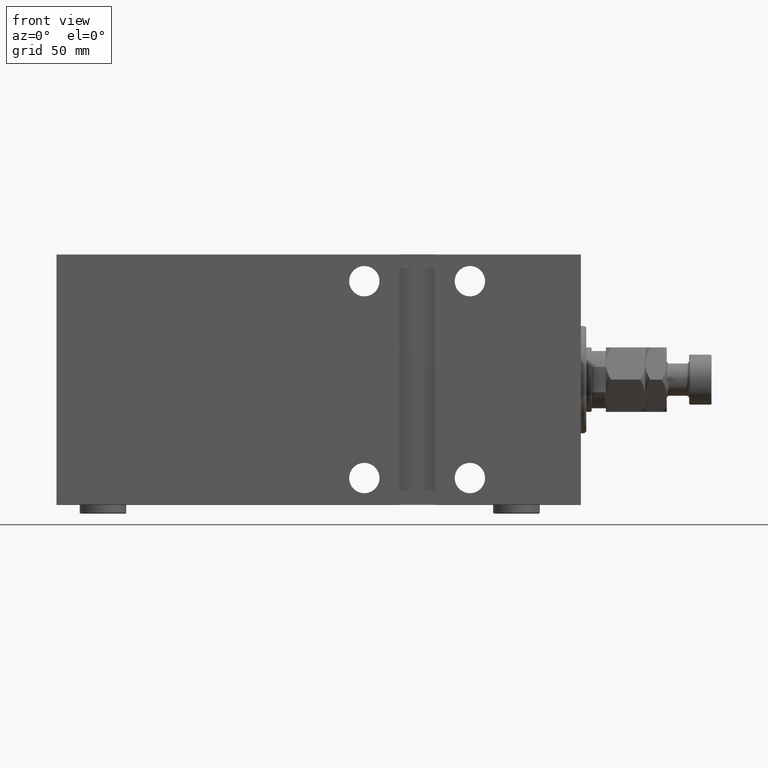
[diagram: clean part render]
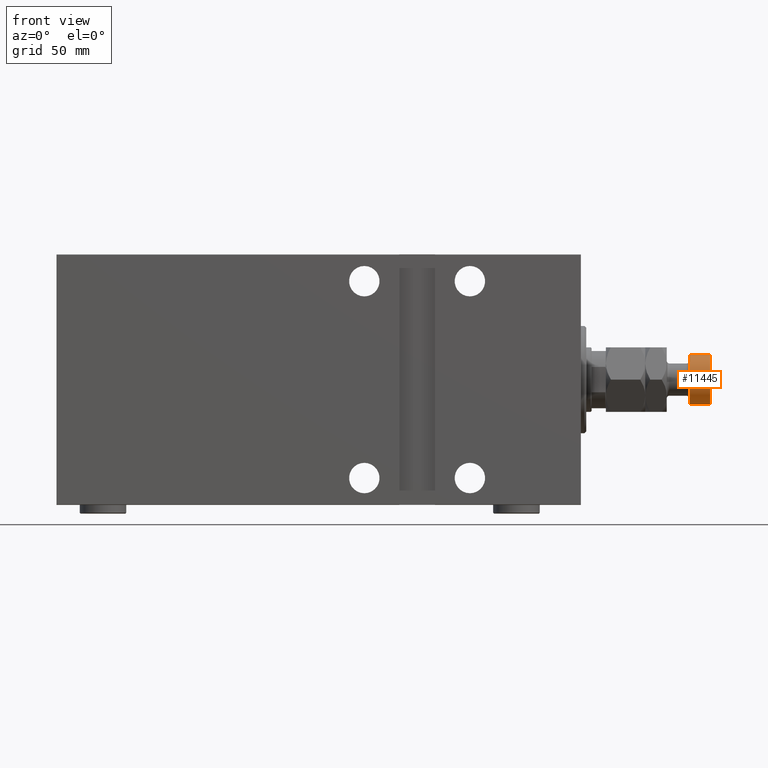
[diagram: same view with one face highlighted and labeled with its STEP entity id]
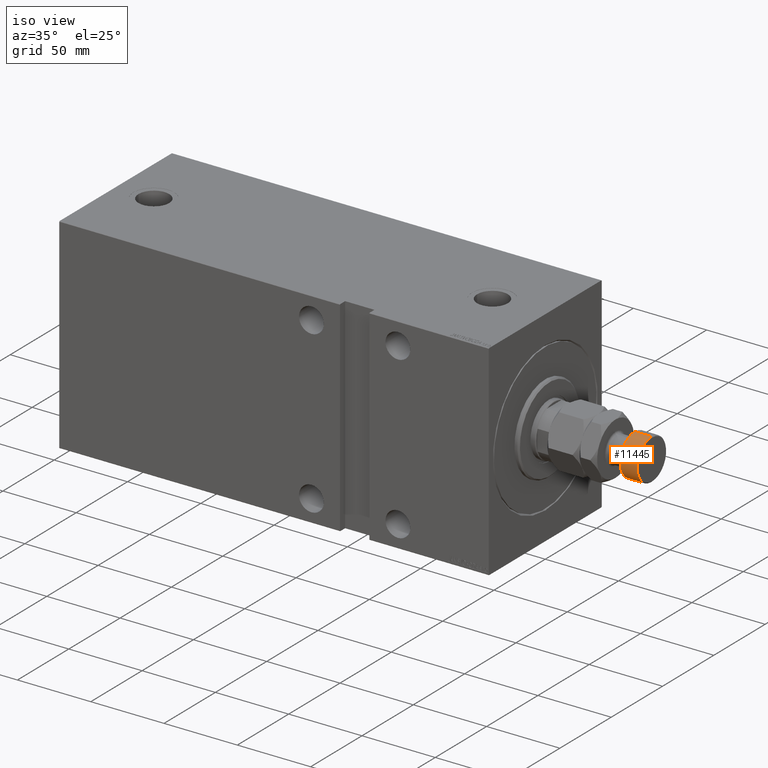
[diagram: same view with one face highlighted and labeled with its STEP entity id]
A machine part, front view. The second image highlights one B-rep face of the part: STEP entity #11445.
A second angle (iso view) of the same face is appended — the face is thin or edge-on in the first view.
In plain terms, the highlighted cylindrical surface (edge-blend (fillet) strip) has radius 14 mm, axis along (-1, -0, 0).
Its self-contained STEP definition (entity closure, byte-faithful):
#164 = VECTOR ( 'NONE', #36305, 1000.000000000000000 ) ;
#1530 = EDGE_CURVE ( 'NONE', #43384, #9385, #23879, .T. ) ;
#3804 = AXIS2_PLACEMENT_3D ( 'NONE', #19039, #22536, #33720 ) ;
#3909 = EDGE_CURVE ( 'NONE', #43384, #8108, #15646, .T. ) ;
#4518 = EDGE_CURVE ( 'NONE', #9385, #23738, #22305, .T. ) ;
#4965 = CARTESIAN_POINT ( 'NONE',  ( 14.00000000000000000, 1.714505518806294638E-15, 59.00000000000000000 ) ) ;
#5224 = ORIENTED_EDGE ( 'NONE', *, *, #24052, .T. ) ;
#8108 = VERTEX_POINT ( 'NONE', #16882 ) ;
#9385 = VERTEX_POINT ( 'NONE', #38513 ) ;
#11445 = ADVANCED_FACE ( 'NONE', ( #19667 ), #41096, .T. ) ;
#11645 = CIRCLE ( 'NONE', #33999, 14.00000000000000000 ) ;
#13572 = CARTESIAN_POINT ( 'NONE',  ( -14.00000000000000000, 0.000000000000000000, 46.99999999999998579 ) ) ;
#15121 = AXIS2_PLACEMENT_3D ( 'NONE', #30387, #40861, #23844 ) ;
#15517 = DIRECTION ( 'NONE',  ( -0.000000000000000000, -0.000000000000000000, 1.000000000000000000 ) ) ;
#15646 = LINE ( 'NONE', #4965, #23956 ) ;
#16081 = ORIENTED_EDGE ( 'NONE', *, *, #4518, .T. ) ;
#16882 = CARTESIAN_POINT ( 'NONE',  ( 14.00000000000000000, 1.714505518806294638E-15, 46.99999999999998579 ) ) ;
#19039 = CARTESIAN_POINT ( 'NONE',  ( 0.000000000000000000, 0.000000000000000000, 58.50000000000002132 ) ) ;
#19182 = ORIENTED_EDGE ( 'NONE', *, *, #3909, .F. ) ;
#19667 = FACE_OUTER_BOUND ( 'NONE', #38637, .T. ) ;
#22305 = LINE ( 'NONE', #36532, #164 ) ;
#22536 = DIRECTION ( 'NONE',  ( 0.000000000000000000, 0.000000000000000000, -1.000000000000000000 ) ) ;
#22975 = CARTESIAN_POINT ( 'NONE',  ( 0.000000000000000000, 0.000000000000000000, 46.99999999999998579 ) ) ;
#23738 = VERTEX_POINT ( 'NONE', #13572 ) ;
#23844 = DIRECTION ( 'NONE',  ( -1.000000000000000000, 0.000000000000000000, 0.000000000000000000 ) ) ;
#23879 = CIRCLE ( 'NONE', #3804, 14.00000000000000000 ) ;
#23956 = VECTOR ( 'NONE', #40128, 1000.000000000000000 ) ;
#24052 = EDGE_CURVE ( 'NONE', #23738, #8108, #11645, .T. ) ;
#29173 = CARTESIAN_POINT ( 'NONE',  ( 14.00000000000000000, 1.714505518806294638E-15, 58.50000000000002132 ) ) ;
#29744 = DIRECTION ( 'NONE',  ( 1.000000000000000000, 0.000000000000000000, 0.000000000000000000 ) ) ;
#30239 = ORIENTED_EDGE ( 'NONE', *, *, #1530, .T. ) ;
#30387 = CARTESIAN_POINT ( 'NONE',  ( 0.000000000000000000, 0.000000000000000000, 59.00000000000000000 ) ) ;
#33720 = DIRECTION ( 'NONE',  ( 1.000000000000000000, 0.000000000000000000, 0.000000000000000000 ) ) ;
#33999 = AXIS2_PLACEMENT_3D ( 'NONE', #22975, #15517, #29744 ) ;
#36305 = DIRECTION ( 'NONE',  ( -0.000000000000000000, -0.000000000000000000, -1.000000000000000000 ) ) ;
#36532 = CARTESIAN_POINT ( 'NONE',  ( -14.00000000000000000, 0.000000000000000000, 59.00000000000000000 ) ) ;
#38513 = CARTESIAN_POINT ( 'NONE',  ( -14.00000000000000000, 0.000000000000000000, 58.50000000000002132 ) ) ;
#38637 = EDGE_LOOP ( 'NONE', ( #19182, #30239, #16081, #5224 ) ) ;
#40128 = DIRECTION ( 'NONE',  ( -0.000000000000000000, -0.000000000000000000, -1.000000000000000000 ) ) ;
#40861 = DIRECTION ( 'NONE',  ( -0.000000000000000000, -0.000000000000000000, -1.000000000000000000 ) ) ;
#41096 = CYLINDRICAL_SURFACE ( 'NONE', #15121, 14.00000000000000000 ) ;
#43384 = VERTEX_POINT ( 'NONE', #29173 ) ;